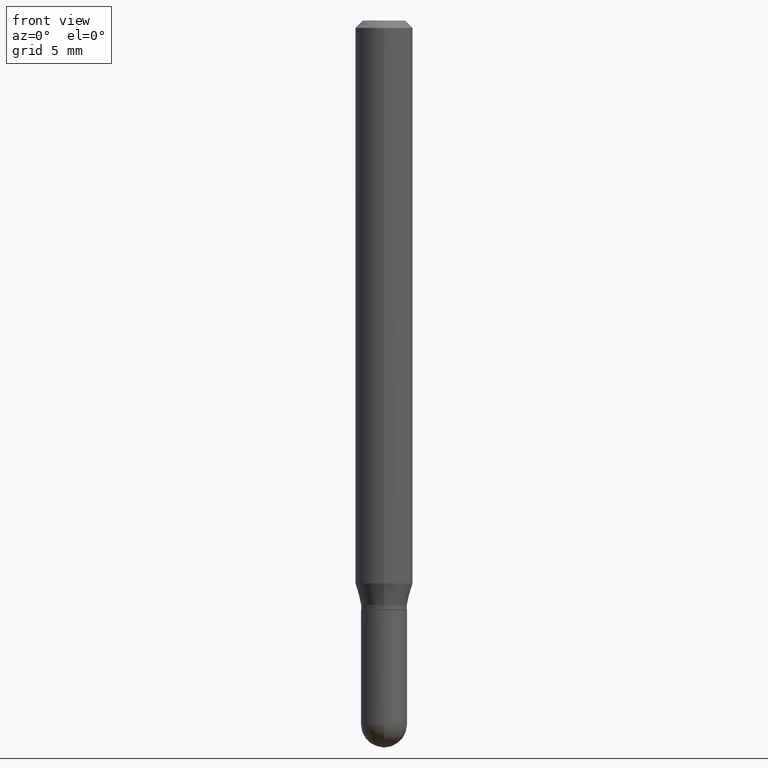
[diagram: clean part render]
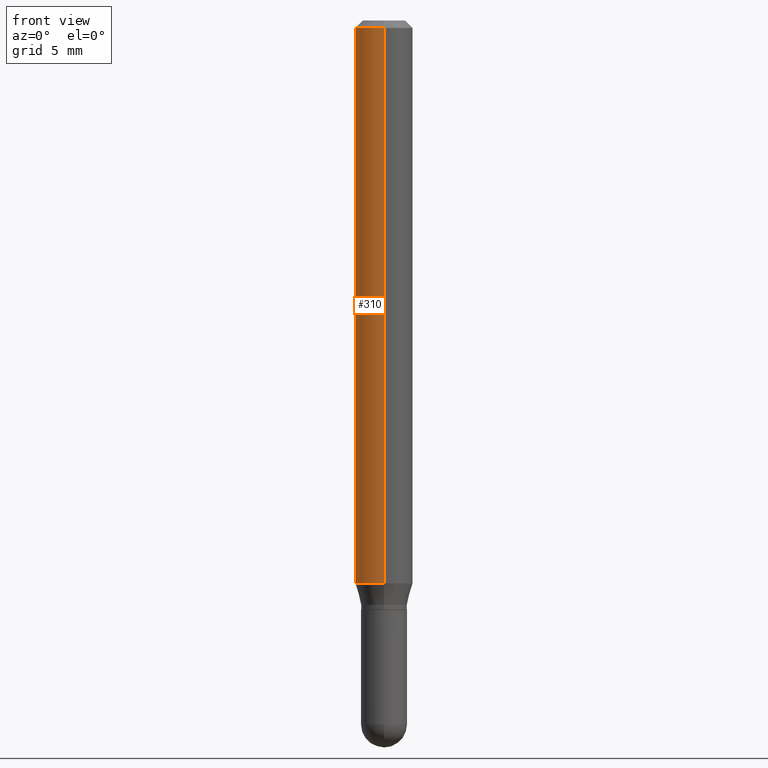
[diagram: same view with one face highlighted and labeled with its STEP entity id]
A machine part, front view. The second image highlights one B-rep face of the part: STEP entity #310.
In plain terms, the highlighted cylindrical surface (edge-blend (fillet) strip) has radius 1.4999 mm, axis along (-0, 0, 1).
Its self-contained STEP definition (entity closure, byte-faithful):
#13 = LINE ( 'NONE', #483, #124 ) ;
#14 = ORIENTED_EDGE ( 'NONE', *, *, #385, .F. ) ;
#15 = CARTESIAN_POINT ( 'NONE',  ( -4.123439461173736383E-16, -0.05905000000000005383, -0.01499999999999981730 ) ) ;
#19 = DIRECTION ( 'NONE',  ( -2.445405226276608768E-29, 3.491572388890901817E-15, 1.000000000000000000 ) ) ;
#27 = AXIS2_PLACEMENT_3D ( 'NONE', #380, #189, #40 ) ;
#28 = LINE ( 'NONE', #184, #448 ) ;
#30 = ORIENTED_EDGE ( 'NONE', *, *, #377, .F. ) ;
#33 = CARTESIAN_POINT ( 'NONE',  ( -4.123439461173456337E-16, -0.05905000000000405758, -1.158561800470687464 ) ) ;
#40 = DIRECTION ( 'NONE',  ( -6.982962677686265922E-15, -1.000000000000000000, 4.626330217890369336E-15 ) ) ;
#80 = DIRECTION ( 'NONE',  ( -2.445405226276608768E-29, 3.491572388890901817E-15, 1.000000000000000000 ) ) ;
#87 = CARTESIAN_POINT ( 'NONE',  ( 4.195754854663675961E-16, 0.05904999999999994281, -0.01500000000000023016 ) ) ;
#124 = VECTOR ( 'NONE', #19, 39.37007874015748143 ) ;
#158 = CARTESIAN_POINT ( 'NONE',  ( 3.668107839414918214E-31, -5.237358583336361453E-17, -0.01500000000000002373 ) ) ;
#168 = EDGE_LOOP ( 'NONE', ( #14, #247, #363, #30 ) ) ;
#172 = CIRCLE ( 'NONE', #346, 0.05904999999999999832 ) ;
#184 = CARTESIAN_POINT ( 'NONE',  ( 4.195754854663390985E-16, 0.05904999999999999832, -2.061773495640077583E-16 ) ) ;
#187 = CYLINDRICAL_SURFACE ( 'NONE', #360, 0.05904999999999999832 ) ;
#189 = DIRECTION ( 'NONE',  ( -2.445405226276608487E-29, 3.491572388890901817E-15, 1.000000000000000000 ) ) ;
#247 = ORIENTED_EDGE ( 'NONE', *, *, #388, .T. ) ;
#265 = DIRECTION ( 'NONE',  ( -2.445405226276608487E-29, 3.491572388890901817E-15, 1.000000000000000000 ) ) ;
#275 = DIRECTION ( 'NONE',  ( -2.445405226276608487E-29, 3.491572388890901817E-15, 1.000000000000000000 ) ) ;
#282 = VERTEX_POINT ( 'NONE', #33 ) ;
#302 = VERTEX_POINT ( 'NONE', #87 ) ;
#307 = CARTESIAN_POINT ( 'NONE',  ( 4.195754854663673496E-16, 0.05904999999999594601, -1.158561800470687686 ) ) ;
#310 = ADVANCED_FACE ( 'NONE', ( #345 ), #187, .T. ) ;
#311 = CARTESIAN_POINT ( 'NONE',  ( 0.000000000000000000, 0.000000000000000000, 0.000000000000000000 ) ) ;
#336 = VERTEX_POINT ( 'NONE', #307 ) ;
#345 = FACE_OUTER_BOUND ( 'NONE', #168, .T. ) ;
#346 = AXIS2_PLACEMENT_3D ( 'NONE', #158, #275, #512 ) ;
#360 = AXIS2_PLACEMENT_3D ( 'NONE', #311, #265, #464 ) ;
#363 = ORIENTED_EDGE ( 'NONE', *, *, #463, .T. ) ;
#377 = EDGE_CURVE ( 'NONE', #302, #499, #172, .T. ) ;
#380 = CARTESIAN_POINT ( 'NONE',  ( 2.833153081835456762E-29, -4.045202393347182480E-15, -1.158561800470687464 ) ) ;
#385 = EDGE_CURVE ( 'NONE', #336, #302, #28, .T. ) ;
#388 = EDGE_CURVE ( 'NONE', #336, #282, #390, .T. ) ;
#390 = CIRCLE ( 'NONE', #27, 0.05904999999999999832 ) ;
#448 = VECTOR ( 'NONE', #80, 39.37007874015748143 ) ;
#463 = EDGE_CURVE ( 'NONE', #282, #499, #13, .T. ) ;
#464 = DIRECTION ( 'NONE',  ( -6.982962677686265922E-15, -1.000000000000000000, 3.491572388890902212E-15 ) ) ;
#483 = CARTESIAN_POINT ( 'NONE',  ( -4.123439461173739834E-16, -0.05904999999999999832, 2.061773495640077583E-16 ) ) ;
#499 = VERTEX_POINT ( 'NONE', #15 ) ;
#512 = DIRECTION ( 'NONE',  ( -6.982962677686265922E-15, -1.000000000000000000, 3.505890868245046092E-15 ) ) ;